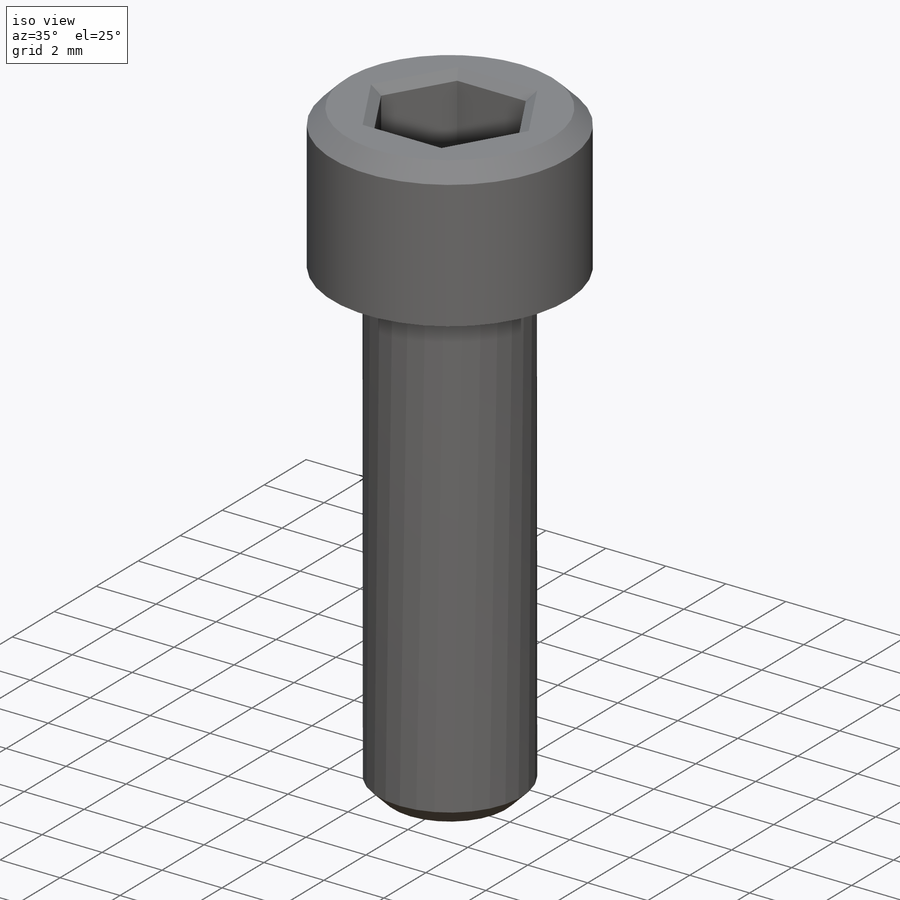
[diagram: iso view]
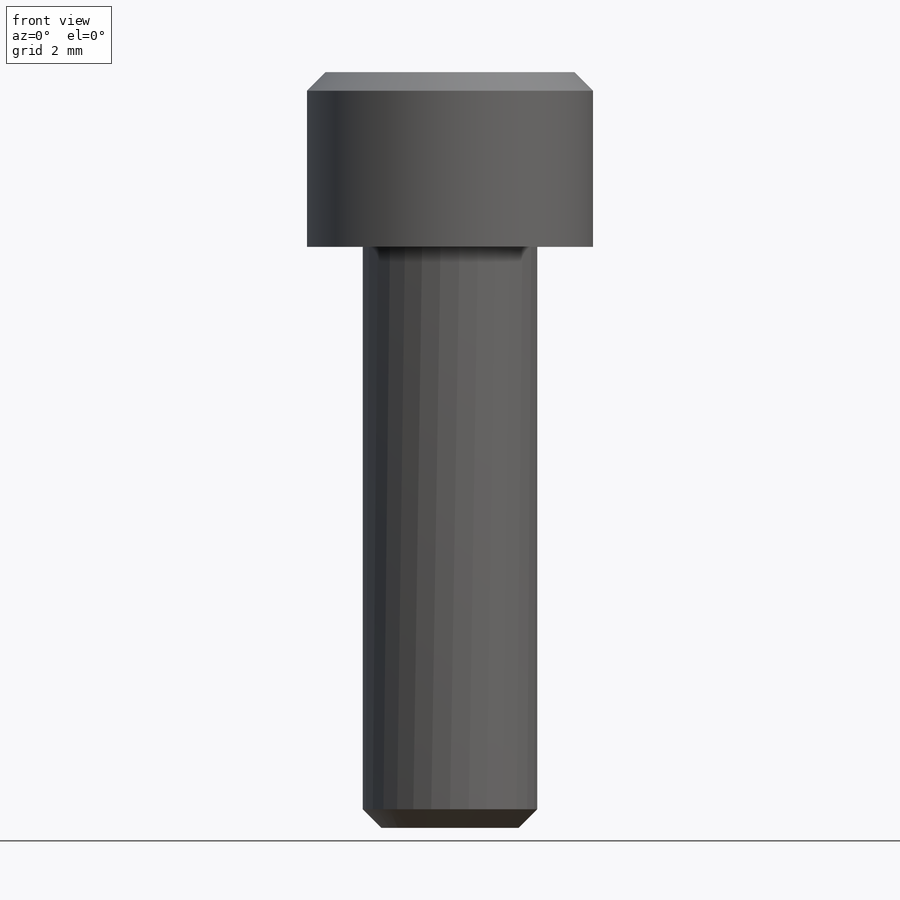
[diagram: front view]
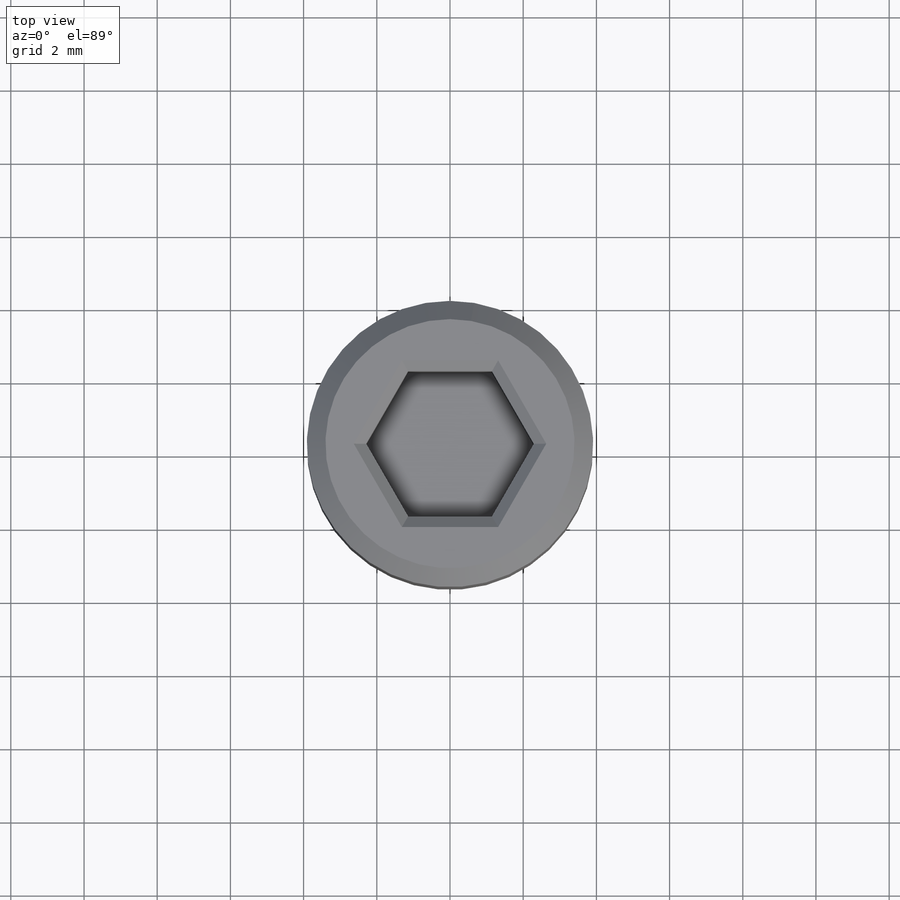
[diagram: top view]
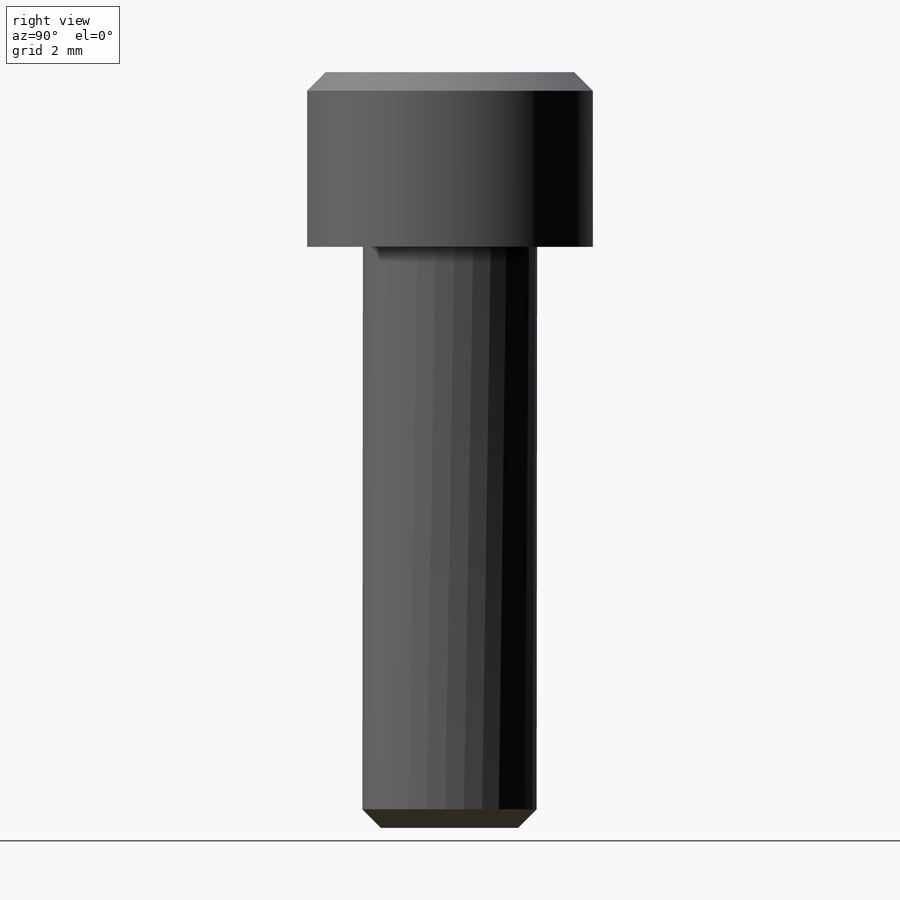
[diagram: right view]
SOLIDWORKS PART (.sldprt)
format: sldprt  version: not decoded by parser v0  size: 183,808 bytes
history: native  units: mm
features: sketch x2, chamfer x2, material x1, revolve x1, cut_extrude x1 (+16 scaffold rows collapsed; 1 parser-record rows omitted)
feature tree (24):
  parser-record x1  (decoder bookkeeping rows leaked as tree rows — omitted from the tree; the rows remain in map.json)
  scaffold x16  (default folders/planes/origin — collapsed)
  material  "Galvanized Steel"
  sketch  "Sketch1"  dims[c1.D1=15.875mm c1.D2=4.7752mm c1.D3=17.4752mm c1.D4=7.8232mm c1.D5=12.7mm c1.D6=17.4752mm c1.D7=7.8232mm c1.D8=4.7752mm c1.D9=~4.582719mm c1.D10=2.794mm c1.D11=0.508mm c2.D11=45.0deg c3.D11=0.508mm c3.D12=0.508mm c3.D13=0.254mm c4.D13=~40.893395deg c5.D13=~0.71842mm c6.D13=45.0deg c6.D3=4.7752mm]
  revolve  "Revolve1"  Angle=360deg
  sketch  "Sketch2"  dims[D1=~4.582719mm]
  cut_extrude  "Extrude1"  Depth=2.794mm
  chamfer  "Chamfer1"  Distance=0.508mm Angle=45deg
  chamfer  "Chamfer2"  Distance=0.293294mm Angle=40.89339deg ModelUUID=0mm UUID=0mm
decode coverage: 6 of 6 modeling features carry decoded parameters
note: ~ marks probable driven/reference dimensions
note: suppression state not decoded; provenance and decode notes live in map.json
